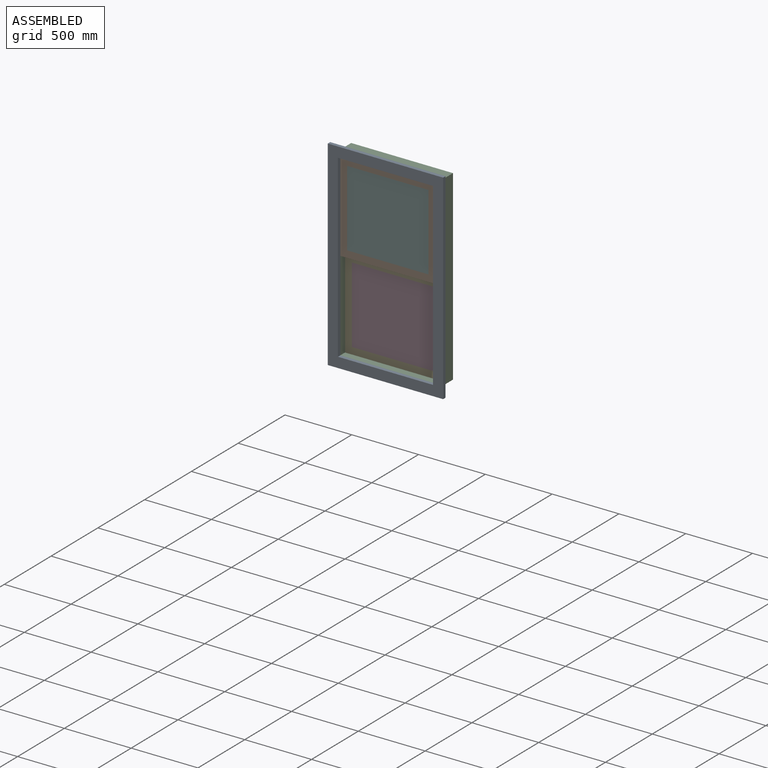
[diagram: assembled view]
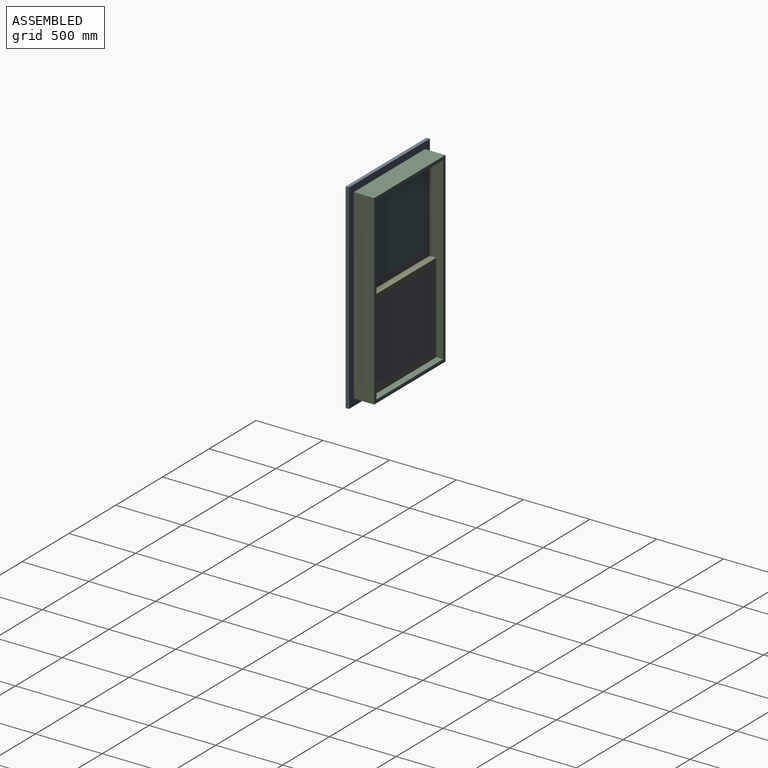
[diagram: assembled view, second angle]
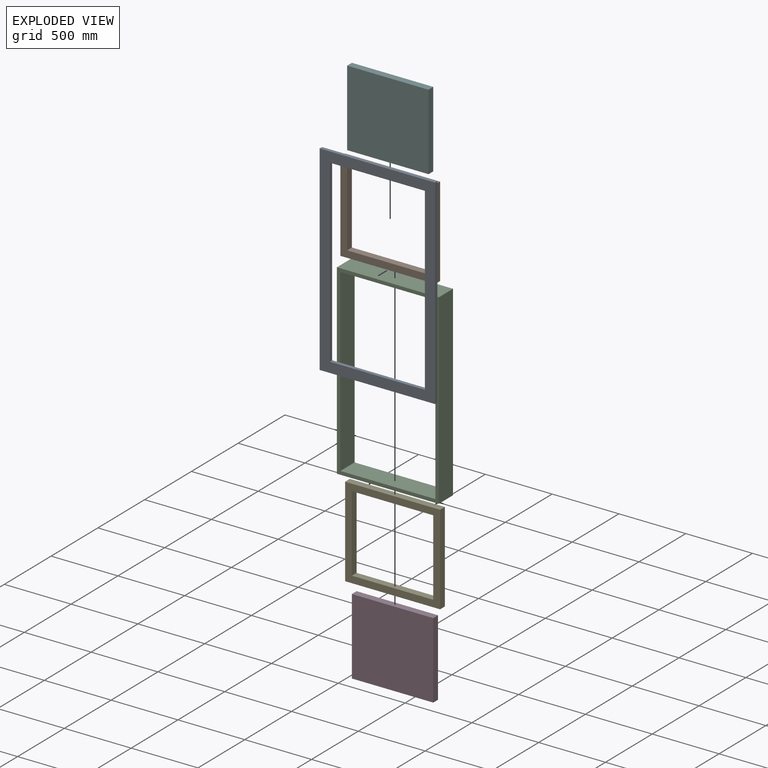
[diagram: exploded view]
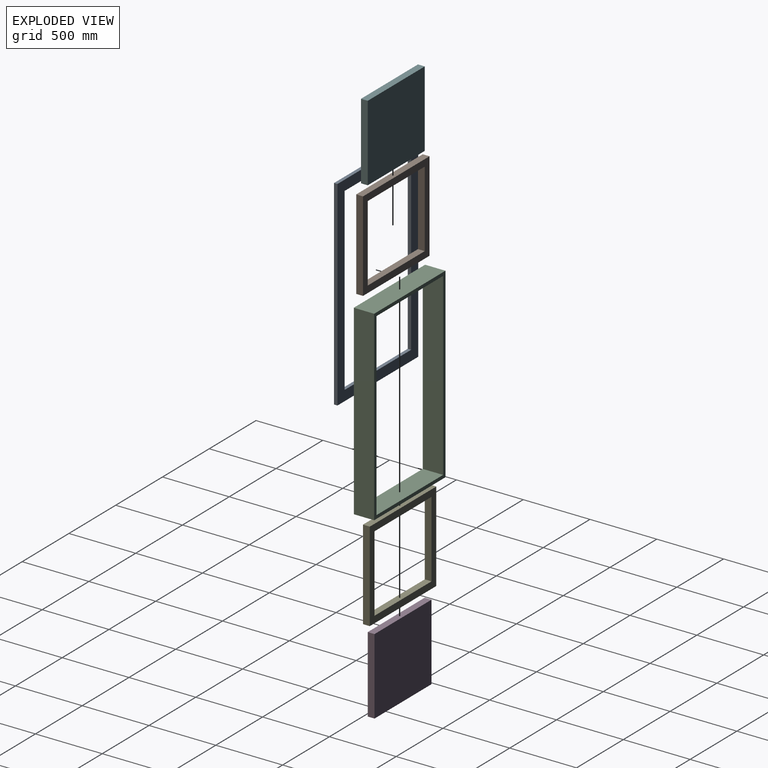
[diagram: exploded view, second angle]
ASSEMBLY  parts=6 mates=5
PART A: 10 faces, bbox 863.6x25.4x1498.6 mm
  f0: plane 863.6x25.4mm, normal (0,0,1), area 21935.4mm2, adj f1,f7,f8,f9
  f1: plane 1498.6x25.4mm, normal (-1,0,0), area 38064.4mm2, adj f0,f2,f8,f9
  f2: plane 863.6x25.4mm, normal (0,0,-1), area 21935.4mm2, adj f1,f7,f8,f9
  f3: plane 1346.2x25.4mm, normal (1,0,0), area 34193.5mm2, adj f4,f6,f8,f9
  f4: plane 711.2x25.4mm, normal (0,0,-1), area 18064.5mm2, adj f3,f5,f8,f9
  f5: plane 1346.2x25.4mm, normal (-1,0,0), area 34193.5mm2, adj f4,f6,f8,f9
  f6: plane 711.2x25.4mm, normal (0,0,1), area 18064.5mm2, adj f3,f5,f8,f9
  f7: plane 1498.6x25.4mm, normal (1,0,0), area 38064.4mm2, adj f0,f2,f8,f9
  f8: plane 1498.6x863.6mm, normal (0,-1,0), area 336773.5mm2, adj f0,f1,f2,f3,f4,f5,f6,f7
  f9: plane 1498.6x863.6mm, normal (0,1,0), area 336773.5mm2, adj f0,f1,f2,f3,f4,f5,f6,f7
PART B: 10 faces, bbox 711.2x50.8x673.1 mm
  f0: plane 711.2x50.8mm, normal (0,0,1), area 36129mm2, adj f1,f7,f8,f9
  f1: plane 673.1x50.8mm, normal (-1,0,0), area 34193.5mm2, adj f0,f2,f8,f9
  f2: plane 711.2x50.8mm, normal (0,0,-1), area 36129mm2, adj f1,f7,f8,f9
  f3: plane 571.5x50.8mm, normal (1,0,0), area 29032.2mm2, adj f4,f6,f8,f9
  f4: plane 609.6x50.8mm, normal (0,0,-1), area 30967.7mm2, adj f3,f5,f8,f9
  f5: plane 571.5x50.8mm, normal (-1,0,0), area 29032.2mm2, adj f4,f6,f8,f9
  f6: plane 609.6x50.8mm, normal (0,0,1), area 30967.7mm2, adj f3,f5,f8,f9
  f7: plane 673.1x50.8mm, normal (1,0,0), area 34193.5mm2, adj f0,f2,f8,f9
  f8: plane 711.2x673.1mm, normal (0,-1,0), area 130322.3mm2, adj f0,f1,f2,f3,f4,f5,f6,f7
  f9: plane 711.2x673.1mm, normal (0,1,0), area 130322.3mm2, adj f0,f1,f2,f3,f4,f5,f6,f7
PART C: 10 faces, bbox 762x152.4x1397 mm
  f0: plane 762x152.4mm, normal (0,0,1), area 116128.8mm2, adj f1,f7,f8,f9
  f1: plane 1397x152.4mm, normal (-1,0,0), area 212902.8mm2, adj f0,f2,f8,f9
  f2: plane 762x152.4mm, normal (0,0,-1), area 116128.8mm2, adj f1,f7,f8,f9
  f3: plane 711.2x152.4mm, normal (0,0,-1), area 108386.9mm2, adj f4,f6,f8,f9
  f4: plane 1346.2x152.4mm, normal (-1,0,0), area 205160.9mm2, adj f3,f5,f8,f9
  f5: plane 711.2x152.4mm, normal (0,0,1), area 108386.9mm2, adj f4,f6,f8,f9
  f6: plane 1346.2x152.4mm, normal (1,0,0), area 205160.9mm2, adj f3,f5,f8,f9
  f7: plane 1397x152.4mm, normal (1,0,0), area 212902.8mm2, adj f0,f2,f8,f9
  f8: plane 1397x762mm, normal (0,-1,0), area 107096.6mm2, adj f0,f1,f2,f3,f4,f5,f6,f7
  f9: plane 1397x762mm, normal (0,1,0), area 107096.6mm2, adj f0,f1,f2,f3,f4,f5,f6,f7
PART D: 6 faces, bbox 609.6x50.8x571.5 mm
  f0: plane 609.6x50.8mm, normal (0,0,1), area 30967.7mm2, adj f1,f3,f4,f5
  f1: plane 571.5x50.8mm, normal (-1,0,0), area 29032.2mm2, adj f0,f2,f4,f5
  f2: plane 609.6x50.8mm, normal (0,0,-1), area 30967.7mm2, adj f1,f3,f4,f5
  f3: plane 571.5x50.8mm, normal (1,0,0), area 29032.2mm2, adj f0,f2,f4,f5
  f4: plane 609.6x571.5mm, normal (0,-1,0), area 348386.4mm2, adj f0,f1,f2,f3
  f5: plane 609.6x571.5mm, normal (0,1,0), area 348386.4mm2, adj f0,f1,f2,f3
PART E: same geometry as B
PART F: same geometry as D
PLACE A t=(170.24,6.43,-258.61)mm
PLACE B t=(143.31,57.23,298.59)mm
PLACE C t=(139,158.83,-410.72)mm
PLACE D t=(-193.93,108.03,-144.45)mm
PLACE E t=(143.31,108.03,-374.51)mm
PLACE F t=(-193.93,57.23,528.65)mm
MATE fastened D.f0 <-> E.f4  axis (0,0,1) through (-438.4,108.03,112.64)mm
MATE fastened F.f0 <-> B.f4  axis (0,0,1) through (-438.4,6.43,785.74)mm
MATE fastened A.f9 <-> C.f8  axis (0,1,0) through (-489.2,6.43,836.54)mm
MATE fastened E.f0 <-> B.f2  axis (0,0,1) through (-489.2,57.23,163.44)mm
MATE fastened B.f0 <-> C.f3  axis (0,0,1) through (-489.2,6.43,836.54)mm
